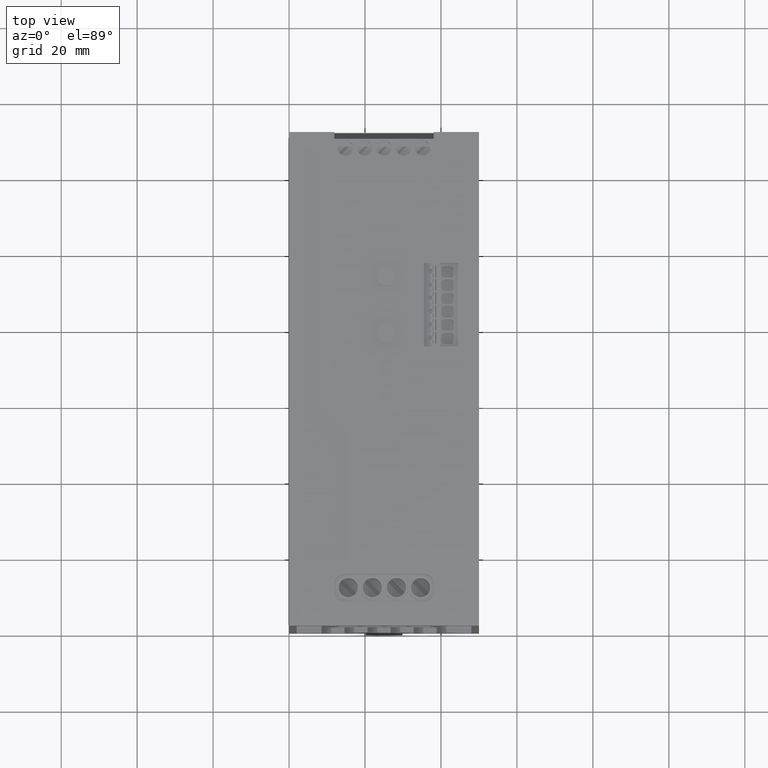
[diagram: clean part render]
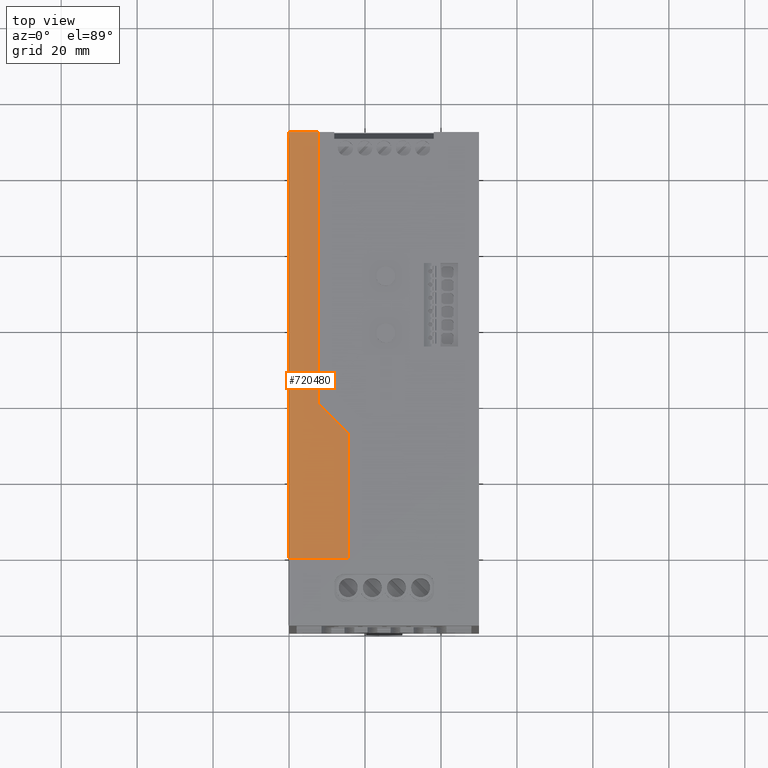
[diagram: same view with one face highlighted and labeled with its STEP entity id]
A machine part, top view. The second image highlights one B-rep face of the part: STEP entity #720480.
In plain terms, the highlighted planar face has unit normal (0, 0, 1).
Its self-contained STEP definition (entity closure, byte-faithful):
#106250=CARTESIAN_POINT('',(7.76666666666667,122.25,70.7));
#106260=VERTEX_POINT('',#106250);
#106290=CARTESIAN_POINT('',(7.76666666666667,122.25,-4.39290988030045));
#106300=DIRECTION('',(0.,0.,1.));
#106310=VECTOR('',#106300,1.);
#106320=LINE('',#106290,#106310);
#106330=CARTESIAN_POINT('',(7.76666666666667,122.25,-0.800000000000023))
;
#106340=VERTEX_POINT('',#106330);
#106350=EDGE_CURVE('',#106340,#106260,#106320,.T.);
#125800=CARTESIAN_POINT('',(15.5785354708757,122.25,111.6));
#125810=VERTEX_POINT('',#125800);
#125840=CARTESIAN_POINT('',(15.5785354708757,122.25,78.511868804209));
#125850=DIRECTION('',(0.,0.,1.));
#125860=VECTOR('',#125850,1.);
#125870=LINE('',#125840,#125860);
#125880=CARTESIAN_POINT('',(15.5785354708757,122.25,78.5118688042091));
#125890=VERTEX_POINT('',#125880);
#125900=EDGE_CURVE('',#125890,#125810,#125870,.T.);
#204000=CARTESIAN_POINT('',(0.,122.25,-0.800000000000023));
#204010=VERTEX_POINT('',#204000);
#204040=CARTESIAN_POINT('',(0.,122.25,0.));
#204050=DIRECTION('',(0.,0.,-1.));
#204060=VECTOR('',#204050,1.);
#204070=LINE('',#204040,#204060);
#204080=CARTESIAN_POINT('',(0.,122.25,111.6));
#204090=VERTEX_POINT('',#204080);
#204100=EDGE_CURVE('',#204090,#204010,#204070,.T.);
#253980=CARTESIAN_POINT('',(0.,122.25,-0.800000000000023));
#253990=DIRECTION('',(1.,0.,0.));
#254000=VECTOR('',#253990,1.);
#254010=LINE('',#253980,#254000);
#254020=EDGE_CURVE('',#204010,#106340,#254010,.T.);
#720110=CARTESIAN_POINT('',(15.5785354708757,122.25,111.6));
#720120=DIRECTION('',(-1.,0.,0.));
#720130=VECTOR('',#720120,1.);
#720140=LINE('',#720110,#720130);
#720150=EDGE_CURVE('',#125810,#204090,#720140,.T.);
#720300=CARTESIAN_POINT('',(27.,122.25,64.2));
#720310=DIRECTION('',(-0.,1.,0.));
#720320=DIRECTION('',(1.,0.,0.));
#720330=AXIS2_PLACEMENT_3D('',#720300,#720310,#720320);
#720340=PLANE('',#720330);
#720350=ORIENTED_EDGE('',*,*,#254020,.F.);
#720360=ORIENTED_EDGE('',*,*,#106350,.F.);
#720370=CARTESIAN_POINT('',(0.,122.25,62.9333333333334));
#720380=DIRECTION('',(-0.707106781186549,0.,-0.707106781186547));
#720390=VECTOR('',#720380,1.);
#720400=LINE('',#720370,#720390);
#720410=EDGE_CURVE('',#125890,#106260,#720400,.T.);
#720420=ORIENTED_EDGE('',*,*,#720410,.T.);
#720430=ORIENTED_EDGE('',*,*,#125900,.F.);
#720440=ORIENTED_EDGE('',*,*,#720150,.F.);
#720450=ORIENTED_EDGE('',*,*,#204100,.F.);
#720460=EDGE_LOOP('',(#720450,#720440,#720430,#720420,#720360,#720350));
#720470=FACE_OUTER_BOUND('',#720460,.T.);
#720480=ADVANCED_FACE('',(#720470),#720340,.T.);